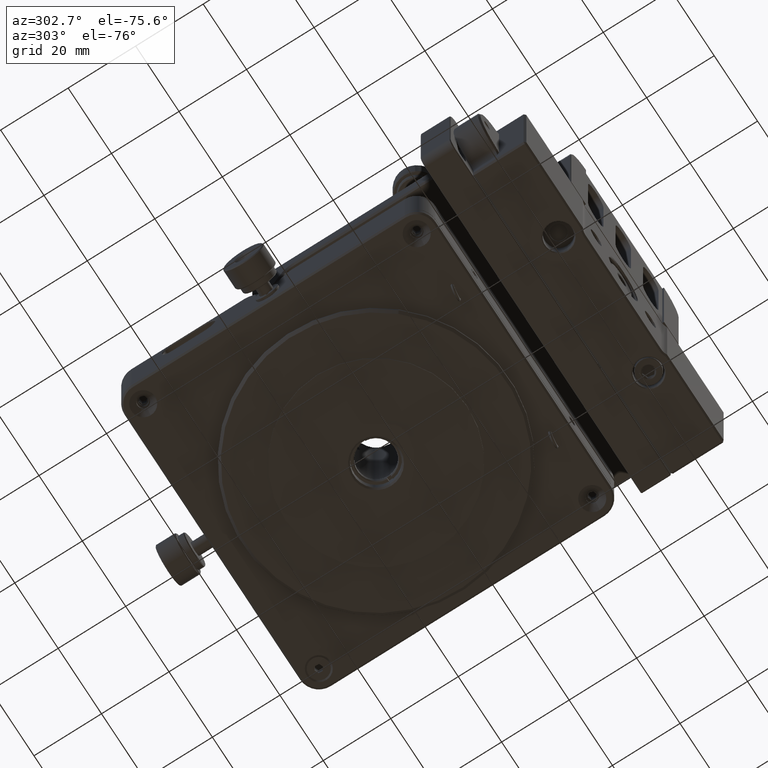
[diagram: clean part render]
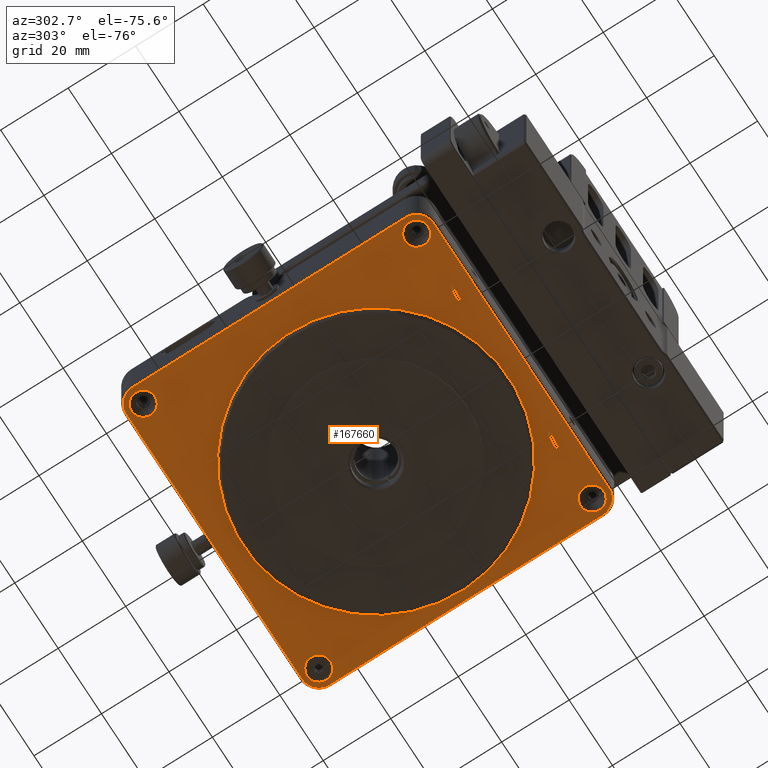
[diagram: same view with one face highlighted and labeled with its STEP entity id]
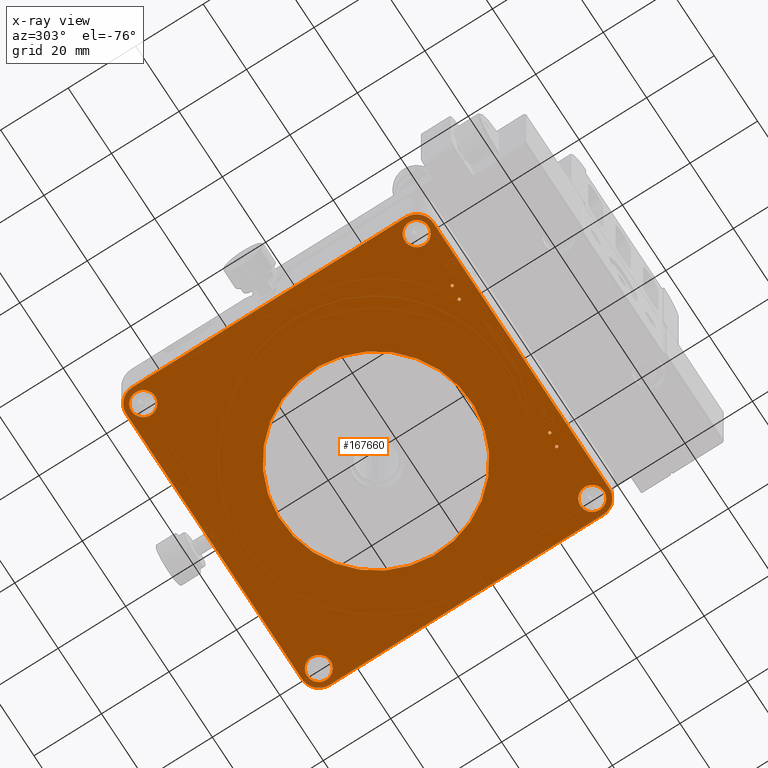
[diagram: x-ray of the same camera — body ghosted, the highlighted face saturated]
A machine part, auxiliary view. The second image highlights one B-rep face of the part: STEP entity #167660.
The next image is the same camera in x-ray: the body ghosted, the highlighted face saturated — about 0% of this face is hidden behind the body in this view.
In plain terms, the highlighted planar face has unit normal (0, 0, -1).
Its self-contained STEP definition (entity closure, byte-faithful):
#92 = ORIENTED_EDGE ( 'NONE', *, *, #39499, .T. ) ;
#320 = EDGE_CURVE ( 'NONE', #157208, #105243, #27492, .T. ) ;
#512 = EDGE_CURVE ( 'NONE', #167673, #133266, #33321, .T. ) ;
#1067 = CARTESIAN_POINT ( 'NONE',  ( -24.89744710219830282, 27.63283814579244435, -13.79999999999999005 ) ) ;
#1145 = EDGE_CURVE ( 'NONE', #93812, #73294, #126204, .T. ) ;
#3263 = CARTESIAN_POINT ( 'NONE',  ( 20.88447292318176096, 27.82886779470217675, -13.79999999999999005 ) ) ;
#3652 = DIRECTION ( 'NONE',  ( 1.000000000000000000, 0.000000000000000000, 0.000000000000000000 ) ) ;
#4131 = CARTESIAN_POINT ( 'NONE',  ( 20.27883712964198182, 27.90664543114087692, -13.79999999999999005 ) ) ;
#5915 = VECTOR ( 'NONE', #42632, 1000.000000000000000 ) ;
#6038 = DIRECTION ( 'NONE',  ( -2.262682794752357144E-16, 1.000000000000000000, 0.000000000000000000 ) ) ;
#6439 = VERTEX_POINT ( 'NONE', #10884 ) ;
#7045 = CARTESIAN_POINT ( 'NONE',  ( -24.04020187718369783, 27.62218947468412011, -13.79999999999998828 ) ) ;
#9296 = EDGE_CURVE ( 'NONE', #35709, #126966, #175110, .T. ) ;
#10884 = CARTESIAN_POINT ( 'NONE',  ( -18.08402205519100292, 49.43216392841598150, -13.79999999999999361 ) ) ;
#12639 = CARTESIAN_POINT ( 'NONE',  ( -24.88495896928329643, 27.52466543934324861, -13.79999999999998828 ) ) ;
#13404 = ORIENTED_EDGE ( 'NONE', *, *, #131718, .T. ) ;
#13531 = CARTESIAN_POINT ( 'NONE',  ( 43.99999999999996447, 27.79999999999999716, -13.79999999999998828 ) ) ;
#13650 = AXIS2_PLACEMENT_3D ( 'NONE', #94603, #104440, #148893 ) ;
#14183 = CARTESIAN_POINT ( 'NONE',  ( 45.49999999999999289, 68.30000000000001137, -13.79999999999998828 ) ) ;
#16632 = CARTESIAN_POINT ( 'NONE',  ( 20.70822327057029355, 27.95427585224049238, -13.79999999999998472 ) ) ;
#17510 = CARTESIAN_POINT ( 'NONE',  ( 20.59617593684530590, 27.98211556399626332, -13.79999999999999005 ) ) ;
#17630 = EDGE_CURVE ( 'NONE', #111304, #93812, #139726, .T. ) ;
#17898 = LINE ( 'NONE', #153183, #78309 ) ;
#18650 = CARTESIAN_POINT ( 'NONE',  ( -24.02786495579259096, 27.51532656831319557, -13.79999999999999005 ) ) ;
#20873 = EDGE_LOOP ( 'NONE', ( #152451, #146388 ) ) ;
#22745 = CARTESIAN_POINT ( 'NONE',  ( 40.49999999999995737, 27.79999999999999716, -13.79999999999998828 ) ) ;
#22824 = DIRECTION ( 'NONE',  ( -1.000000000000000000, 0.000000000000000000, 0.000000000000000000 ) ) ;
#23116 = ORIENTED_EDGE ( 'NONE', *, *, #133627, .F. ) ;
#23220 = VERTEX_POINT ( 'NONE', #115661 ) ;
#24242 = CARTESIAN_POINT ( 'NONE',  ( 24.63740835919594119, 28.41063958569165848, -13.79999999999998472 ) ) ;
#24544 = AXIS2_PLACEMENT_3D ( 'NONE', #22745, #36954, #63681 ) ;
#24828 = DIRECTION ( 'NONE',  ( -1.000000000000000000, 0.000000000000000000, 0.000000000000000000 ) ) ;
#24853 = CARTESIAN_POINT ( 'NONE',  ( 45.50000000000000000, 27.80000000000000426, -13.79999999999998828 ) ) ;
#25120 = CARTESIAN_POINT ( 'NONE',  ( -40.50000000000001421, 108.8000000000000114, -13.79999999999998828 ) ) ;
#26113 = CARTESIAN_POINT ( 'NONE',  ( -20.79174767630572873, 28.35741619543170700, -13.79999999999999005 ) ) ;
#26660 = EDGE_LOOP ( 'NONE', ( #23116, #80894 ) ) ;
#27403 = CARTESIAN_POINT ( 'NONE',  ( -40.49999999999998579, 108.8000000000000114, -13.79999999999998828 ) ) ;
#27492 = CIRCLE ( 'NONE', #50202, 3.500000000000003109 ) ;
#27769 = CARTESIAN_POINT ( 'NONE',  ( -24.04020187718369783, 27.62218947468412011, -13.79999999999998828 ) ) ;
#28002 = AXIS2_PLACEMENT_3D ( 'NONE', #139400, #44151, #125171 ) ;
#28403 = EDGE_CURVE ( 'NONE', #61238, #106487, #75960, .T. ) ;
#28634 = EDGE_LOOP ( 'NONE', ( #97052, #127620 ) ) ;
#28655 = CARTESIAN_POINT ( 'NONE',  ( -24.86131511196122190, 27.74382764132107937, -13.79999999999998828 ) ) ;
#29658 = CARTESIAN_POINT ( 'NONE',  ( 40.50000000000000000, 27.80000000000000426, -13.79999999999998828 ) ) ;
#29704 = CARTESIAN_POINT ( 'NONE',  ( 24.88495896931013363, 28.07533456065377209, -13.79999999999998828 ) ) ;
#30469 = EDGE_CURVE ( 'NONE', #42645, #152733, #72235, .T. ) ;
#30486 = CARTESIAN_POINT ( 'NONE',  ( -20.11504103068986282, 28.07533456065377209, -13.79999999999998828 ) ) ;
#30853 = CARTESIAN_POINT ( 'NONE',  ( 20.11504103071670002, 27.52466543934324861, -13.79999999999998828 ) ) ;
#31022 = VERTEX_POINT ( 'NONE', #67418 ) ;
#31145 = CARTESIAN_POINT ( 'NONE',  ( -24.81230049881804689, 27.31667212777260545, -13.79999999999999005 ) ) ;
#31302 = ORIENTED_EDGE ( 'NONE', *, *, #163586, .T. ) ;
#31933 = VECTOR ( 'NONE', #155689, 1000.000000000000000 ) ;
#32343 = CARTESIAN_POINT ( 'NONE',  ( 20.93357107436468922, 27.40421211227754839, -13.79999999999998828 ) ) ;
#33321 = CIRCLE ( 'NONE', #101545, 3.500000000000003109 ) ;
#33745 = LINE ( 'NONE', #130730, #31933 ) ;
#34645 = ORIENTED_EDGE ( 'NONE', *, *, #156206, .T. ) ;
#35459 = EDGE_CURVE ( 'NONE', #160307, #6439, #92524, .T. ) ;
#35511 = ORIENTED_EDGE ( 'NONE', *, *, #167866, .T. ) ;
#35691 = DIRECTION ( 'NONE',  ( 0.000000000000000000, -0.000000000000000000, -1.000000000000000000 ) ) ;
#35709 = VERTEX_POINT ( 'NONE', #146123 ) ;
#35869 = EDGE_CURVE ( 'NONE', #118367, #61238, #17898, .T. ) ;
#36954 = DIRECTION ( 'NONE',  ( -0.000000000000000000, -0.000000000000000000, 1.000000000000000000 ) ) ;
#37330 = VERTEX_POINT ( 'NONE', #44374 ) ;
#37694 = CARTESIAN_POINT ( 'NONE',  ( -20.95979812280276278, 27.97781052531558288, -13.79999999999998828 ) ) ;
#38324 = DIRECTION ( 'NONE',  ( -0.000000000000000000, -0.000000000000000000, 1.000000000000000000 ) ) ;
#38398 = AXIS2_PLACEMENT_3D ( 'NONE', #25120, #51818, #145308 ) ;
#39148 = ORIENTED_EDGE ( 'NONE', *, *, #92479, .T. ) ;
#39280 = CIRCLE ( 'NONE', #13650, 28.24999999999999645 ) ;
#39499 = EDGE_CURVE ( 'NONE', #73294, #118367, #146406, .T. ) ;
#40203 = CARTESIAN_POINT ( 'NONE',  ( -40.50000000000001421, 113.7999999999999972, -13.79999999999998828 ) ) ;
#40239 = CARTESIAN_POINT ( 'NONE',  ( -37.00000000000000000, 27.80000000000000426, -13.79999999999998828 ) ) ;
#40759 = FACE_BOUND ( 'NONE', #163475, .T. ) ;
#42302 = AXIS2_PLACEMENT_3D ( 'NONE', #173643, #38324, #120223 ) ;
#42519 = DIRECTION ( 'NONE',  ( 0.000000000000000000, 0.000000000000000000, -1.000000000000000000 ) ) ;
#42632 = DIRECTION ( 'NONE',  ( 2.262682794752357144E-16, -1.000000000000000000, 0.000000000000000000 ) ) ;
#42645 = VERTEX_POINT ( 'NONE', #164892 ) ;
#43446 = DIRECTION ( 'NONE',  ( -1.000000000000000000, 0.000000000000000000, 0.000000000000000000 ) ) ;
#43975 = VERTEX_POINT ( 'NONE', #98227 ) ;
#44151 = DIRECTION ( 'NONE',  ( -0.000000000000000000, -0.000000000000000000, 1.000000000000000000 ) ) ;
#44374 = CARTESIAN_POINT ( 'NONE',  ( -24.04020187718369783, 27.62218947468412011, -13.79999999999998828 ) ) ;
#44555 = CIRCLE ( 'NONE', #112790, 3.500000000000003109 ) ;
#45601 = CARTESIAN_POINT ( 'NONE',  ( -44.00000000000000711, 27.80000000000000426, -13.79999999999998828 ) ) ;
#46555 = CARTESIAN_POINT ( 'NONE',  ( 20.97213504420741259, 27.51532656831319557, -13.79999999999999005 ) ) ;
#48318 = CARTESIAN_POINT ( 'NONE',  ( 20.36286831902223327, 27.18930864080445886, -13.79999999999998472 ) ) ;
#50202 = AXIS2_PLACEMENT_3D ( 'NONE', #173474, #146744, #24828 ) ;
#50946 = CARTESIAN_POINT ( 'NONE',  ( 24.31068564032500490, 28.41067823088645383, -13.79999999999998828 ) ) ;
#51591 = ORIENTED_EDGE ( 'NONE', *, *, #104933, .T. ) ;
#51779 = DIRECTION ( 'NONE',  ( -1.000000000000000000, 0.000000000000000000, 0.000000000000000000 ) ) ;
#51818 = DIRECTION ( 'NONE',  ( 0.000000000000000000, -0.000000000000000000, -1.000000000000000000 ) ) ;
#54125 = FACE_BOUND ( 'NONE', #28634, .T. ) ;
#54604 = CARTESIAN_POINT ( 'NONE',  ( -20.47502271765608128, 28.43741010025776461, -13.79999999999999005 ) ) ;
#54621 = DIRECTION ( 'NONE',  ( 0.000000000000000000, -0.000000000000000000, -1.000000000000000000 ) ) ;
#54722 = ORIENTED_EDGE ( 'NONE', *, *, #1145, .T. ) ;
#57557 = CARTESIAN_POINT ( 'NONE',  ( 20.10255289780169718, 27.63283814579244435, -13.79999999999999005 ) ) ;
#57748 = EDGE_CURVE ( 'NONE', #123545, #111304, #33745, .T. ) ;
#59858 = CARTESIAN_POINT ( 'NONE',  ( -20.94745386183553748, 27.87088404348727977, -13.79999999999998650 ) ) ;
#59882 = CARTESIAN_POINT ( 'NONE',  ( -45.49999999999999289, 27.80000000000000426, -13.79999999999998828 ) ) ;
#59912 = CARTESIAN_POINT ( 'NONE',  ( 24.61836348446179557, 27.64118161369484739, -13.79999999999998828 ) ) ;
#59930 = CARTESIAN_POINT ( 'NONE',  ( 20.18769950118195666, 27.31667212777260545, -13.79999999999999005 ) ) ;
#60982 = CARTESIAN_POINT ( 'NONE',  ( 40.50000000000000000, 22.80000000000000071, -13.79999999999998828 ) ) ;
#61238 = VERTEX_POINT ( 'NONE', #135341 ) ;
#61336 = CARTESIAN_POINT ( 'NONE',  ( -24.88495896928329643, 27.52466543934324861, -13.79999999999998828 ) ) ;
#63033 = CARTESIAN_POINT ( 'NONE',  ( -40.49999999999998579, 108.8000000000000114, -13.79999999999998828 ) ) ;
#63418 = CARTESIAN_POINT ( 'NONE',  ( 20.11504103071670002, 27.52466543934324861, -13.79999999999998828 ) ) ;
#63681 = DIRECTION ( 'NONE',  ( -1.000000000000000000, 0.000000000000000000, 0.000000000000000000 ) ) ;
#65180 = CARTESIAN_POINT ( 'NONE',  ( 24.06652015931323518, 28.19595142426002710, -13.79999999999998828 ) ) ;
#67418 = CARTESIAN_POINT ( 'NONE',  ( -20.95979812280276278, 27.97781052531558288, -13.79999999999998828 ) ) ;
#67946 = CARTESIAN_POINT ( 'NONE',  ( -20.18723908980668114, 28.28284308626121657, -13.79999999999999005 ) ) ;
#68645 = B_SPLINE_CURVE_WITH_KNOTS ( 'NONE', 3,
 ( #86541, #59858, #84801, #71465, #97288, #125755, #139097, #99906, #111516, #85682 ),
 .UNSPECIFIED., .F., .F.,
 ( 4, 2, 2, 2, 4 ),
 ( 0.002216959276090611861, 0.002539022829340664006, 0.002861086382590716150, 0.003183149935840768295, 0.003505213489090820440 ),
 .UNSPECIFIED. ) ;
#70107 = FACE_BOUND ( 'NONE', #74502, .T. ) ;
#70129 = CARTESIAN_POINT ( 'NONE',  ( 20.95979812281630217, 27.62218947468412011, -13.79999999999998828 ) ) ;
#70881 = EDGE_LOOP ( 'NONE', ( #120957, #51591 ) ) ;
#70915 = CARTESIAN_POINT ( 'NONE',  ( 20.94746507876199715, 27.72901879504997780, -13.79999999999998650 ) ) ;
#71205 = CARTESIAN_POINT ( 'NONE',  ( -24.87246691023212009, 27.41645872454559196, -13.79999999999998650 ) ) ;
#71206 = CIRCLE ( 'NONE', #93902, 3.499999999999996003 ) ;
#71286 = ORIENTED_EDGE ( 'NONE', *, *, #30469, .T. ) ;
#71465 = CARTESIAN_POINT ( 'NONE',  ( -20.70760978610969616, 27.64534937805002102, -13.79999999999998472 ) ) ;
#72235 = B_SPLINE_CURVE_WITH_KNOTS ( 'NONE', 3,
 ( #63418, #127575, #59930, #48318, #102595, #117702, #114208, #32343, #46555, #100838 ),
 .UNSPECIFIED., .F., .F.,
 ( 4, 2, 2, 2, 4 ),
 ( 0.002374368480992179644, 0.002696737954454385584, 0.003019107427916591958, 0.003341476901378797899, 0.003663846374841003839 ),
 .UNSPECIFIED. ) ;
#72378 = CARTESIAN_POINT ( 'NONE',  ( 24.40300597980497699, 27.61777713774481668, -13.79999999999999005 ) ) ;
#73294 = VERTEX_POINT ( 'NONE', #132053 ) ;
#73745 = B_SPLINE_CURVE_WITH_KNOTS ( 'NONE', 3,
 ( #131461, #155126, #127558, #114188, #72378, #59912, #112434, #168493, #99964, #29704 ),
 .UNSPECIFIED., .F., .F.,
 ( 4, 2, 2, 2, 4 ),
 ( 0.002216959276090611861, 0.002539022829340664006, 0.002861086382590716150, 0.003183149935840768295, 0.003505213489090820440 ),
 .UNSPECIFIED. ) ;
#74063 = CARTESIAN_POINT ( 'NONE',  ( -43.99999999999999289, 108.8000000000000114, -13.79999999999998828 ) ) ;
#74502 = EDGE_LOOP ( 'NONE', ( #82881, #100555 ) ) ;
#74548 = CARTESIAN_POINT ( 'NONE',  ( -45.50000000000000711, 68.29999999999998295, -13.79999999999998828 ) ) ;
#74901 = CARTESIAN_POINT ( 'NONE',  ( 40.49999999999997868, 108.8000000000000114, -13.79999999999998828 ) ) ;
#75960 = CIRCLE ( 'NONE', #141393, 4.999999999999997335 ) ;
#75998 = EDGE_CURVE ( 'NONE', #105243, #157208, #79137, .T. ) ;
#77761 = CARTESIAN_POINT ( 'NONE',  ( -20.68931435967499155, 28.41067823088645383, -13.79999999999998828 ) ) ;
#78309 = VECTOR ( 'NONE', #3652, 1000.000000000000000 ) ;
#79137 = CIRCLE ( 'NONE', #42302, 3.500000000000003109 ) ;
#80894 = ORIENTED_EDGE ( 'NONE', *, *, #35459, .F. ) ;
#81677 = CARTESIAN_POINT ( 'NONE',  ( 45.49999999999997868, 108.8000000000000114, -13.79999999999998828 ) ) ;
#82055 = CARTESIAN_POINT ( 'NONE',  ( -24.29177672942969579, 27.95427585224049238, -13.79999999999998472 ) ) ;
#82881 = ORIENTED_EDGE ( 'NONE', *, *, #111459, .T. ) ;
#83453 = CARTESIAN_POINT ( 'NONE',  ( 43.99999999999996447, 108.8000000000000114, -13.79999999999998828 ) ) ;
#84126 = VERTEX_POINT ( 'NONE', #24853 ) ;
#84801 = CARTESIAN_POINT ( 'NONE',  ( -20.88476591325164833, 27.77127904318251694, -13.79999999999999005 ) ) ;
#85682 = CARTESIAN_POINT ( 'NONE',  ( -20.11504103068986282, 28.07533456065377209, -13.79999999999998828 ) ) ;
#86541 = CARTESIAN_POINT ( 'NONE',  ( -20.95979812280276278, 27.97781052531558288, -13.79999999999998828 ) ) ;
#91002 = CARTESIAN_POINT ( 'NONE',  ( 24.04020187719723722, 27.97781052531558288, -13.79999999999998828 ) ) ;
#92479 = EDGE_CURVE ( 'NONE', #84126, #123545, #137951, .T. ) ;
#92524 = CIRCLE ( 'NONE', #115299, 28.24999999999999645 ) ;
#92562 = AXIS2_PLACEMENT_3D ( 'NONE', #29658, #54621, #96421 ) ;
#92737 = CARTESIAN_POINT ( 'NONE',  ( 24.88495896931013363, 28.07533456065377209, -13.79999999999998828 ) ) ;
#92827 = CARTESIAN_POINT ( 'NONE',  ( 36.99999999999995737, 108.8000000000000114, -13.79999999999998828 ) ) ;
#92843 = EDGE_LOOP ( 'NONE', ( #34645, #31302 ) ) ;
#93199 = ORIENTED_EDGE ( 'NONE', *, *, #9296, .T. ) ;
#93264 = FACE_BOUND ( 'NONE', #26660, .T. ) ;
#93812 = VERTEX_POINT ( 'NONE', #59882 ) ;
#93902 = AXIS2_PLACEMENT_3D ( 'NONE', #144745, #159843, #22824 ) ;
#94603 = CARTESIAN_POINT ( 'NONE',  ( 3.261633096731141102, 67.93690672952564569, -13.79999999999999361 ) ) ;
#95032 = FACE_BOUND ( 'NONE', #123139, .T. ) ;
#95921 = FACE_BOUND ( 'NONE', #92843, .T. ) ;
#96255 = CARTESIAN_POINT ( 'NONE',  ( -24.88495896928329643, 27.52466543934324861, -13.79999999999998828 ) ) ;
#96421 = DIRECTION ( 'NONE',  ( 1.000000000000000000, 0.000000000000000000, 0.000000000000000000 ) ) ;
#97052 = ORIENTED_EDGE ( 'NONE', *, *, #320, .T. ) ;
#97288 = CARTESIAN_POINT ( 'NONE',  ( -20.59699402019502301, 27.61777713774481668, -13.79999999999999005 ) ) ;
#98227 = CARTESIAN_POINT ( 'NONE',  ( 24.88495896931013363, 28.07533456065377209, -13.79999999999998828 ) ) ;
#99668 = CARTESIAN_POINT ( 'NONE',  ( 24.60728824865328335, 86.44164953063528856, -13.79999999999999361 ) ) ;
#99906 = CARTESIAN_POINT ( 'NONE',  ( -20.13774447032141168, 27.85733730260842123, -13.79999999999998828 ) ) ;
#99964 = CARTESIAN_POINT ( 'NONE',  ( 24.89729409423503625, 27.96848721528501613, -13.79999999999999005 ) ) ;
#100515 = CARTESIAN_POINT ( 'NONE',  ( -24.63713168097775608, 27.18930864080445886, -13.79999999999998472 ) ) ;
#100555 = ORIENTED_EDGE ( 'NONE', *, *, #512, .T. ) ;
#100838 = CARTESIAN_POINT ( 'NONE',  ( 20.95979812281630217, 27.62218947468412011, -13.79999999999998828 ) ) ;
#101545 = AXIS2_PLACEMENT_3D ( 'NONE', #148510, #136039, #43446 ) ;
#101719 = EDGE_CURVE ( 'NONE', #23220, #134288, #169082, .T. ) ;
#101791 = CIRCLE ( 'NONE', #28002, 3.500000000000003109 ) ;
#102595 = CARTESIAN_POINT ( 'NONE',  ( 20.47523701869589630, 27.16254778262087655, -13.79999999999999005 ) ) ;
#104440 = DIRECTION ( 'NONE',  ( 0.000000000000000000, 0.000000000000000000, -1.000000000000000000 ) ) ;
#104455 = B_SPLINE_CURVE_WITH_KNOTS ( 'NONE', 3,
 ( #61336, #71205, #31145, #100515, #114742, #154815, #167304, #153078, #18650, #7045 ),
 .UNSPECIFIED., .F., .F.,
 ( 4, 2, 2, 2, 4 ),
 ( 0.002374368480992179644, 0.002696737954454385584, 0.003019107427916591958, 0.003341476901378797899, 0.003663846374841003839 ),
 .UNSPECIFIED. ) ;
#104933 = EDGE_CURVE ( 'NONE', #43975, #121204, #128028, .T. ) ;
#105243 = VERTEX_POINT ( 'NONE', #40239 ) ;
#105335 = CARTESIAN_POINT ( 'NONE',  ( -20.11504103068986282, 28.07533456065377209, -13.79999999999998828 ) ) ;
#106487 = VERTEX_POINT ( 'NONE', #81677 ) ;
#106610 = DIRECTION ( 'NONE',  ( -1.000000000000000000, 0.000000000000000000, -0.000000000000000000 ) ) ;
#106981 = CARTESIAN_POINT ( 'NONE',  ( 24.81276091019331886, 28.28284308626121657, -13.79999999999999005 ) ) ;
#110157 = FACE_OUTER_BOUND ( 'NONE', #148820, .T. ) ;
#111304 = VERTEX_POINT ( 'NONE', #126042 ) ;
#111459 = EDGE_CURVE ( 'NONE', #133266, #167673, #101791, .T. ) ;
#111516 = CARTESIAN_POINT ( 'NONE',  ( -20.10270590576496730, 27.96848721528501613, -13.79999999999999005 ) ) ;
#112434 = CARTESIAN_POINT ( 'NONE',  ( 24.72045378482809852, 27.69245848642102814, -13.79999999999999005 ) ) ;
#112790 = AXIS2_PLACEMENT_3D ( 'NONE', #170580, #131373, #169700 ) ;
#114188 = CARTESIAN_POINT ( 'NONE',  ( 24.29239021389029318, 27.64534937805002102, -13.79999999999998472 ) ) ;
#114208 = CARTESIAN_POINT ( 'NONE',  ( 20.79186138978329268, 27.24265383499215432, -13.79999999999999005 ) ) ;
#114463 = CARTESIAN_POINT ( 'NONE',  ( 20.13868488803877455, 27.74382764132107937, -13.79999999999998828 ) ) ;
#114742 = CARTESIAN_POINT ( 'NONE',  ( -24.52476298130410726, 27.16254778262087655, -13.79999999999999005 ) ) ;
#115299 = AXIS2_PLACEMENT_3D ( 'NONE', #136307, #173723, #51779 ) ;
#115453 = EDGE_CURVE ( 'NONE', #134288, #23220, #71206, .T. ) ;
#115661 = CARTESIAN_POINT ( 'NONE',  ( -36.99999999999998579, 108.8000000000000114, -13.79999999999998828 ) ) ;
#115749 = ORIENTED_EDGE ( 'NONE', *, *, #116637, .T. ) ;
#115789 = VECTOR ( 'NONE', #6038, 1000.000000000000000 ) ;
#116637 = EDGE_CURVE ( 'NONE', #106487, #84126, #136091, .T. ) ;
#117702 = CARTESIAN_POINT ( 'NONE',  ( 20.68966530206015975, 27.18943457940636677, -13.79999999999998828 ) ) ;
#118367 = VERTEX_POINT ( 'NONE', #40203 ) ;
#118496 = VERTEX_POINT ( 'NONE', #96255 ) ;
#119035 = B_SPLINE_CURVE_WITH_KNOTS ( 'NONE', 3,
 ( #105335, #148040, #67946, #122243, #54604, #77761, #26113, #132044, #147156, #37694 ),
 .UNSPECIFIED., .F., .F.,
 ( 4, 2, 2, 2, 4 ),
 ( 0.0009280329053021958057, 0.001250264497999299847, 0.001572496090696403996, 0.001894727683393507929, 0.002216959276090611861 ),
 .UNSPECIFIED. ) ;
#120223 = DIRECTION ( 'NONE',  ( -1.000000000000000000, 0.000000000000000000, 0.000000000000000000 ) ) ;
#120340 = CARTESIAN_POINT ( 'NONE',  ( -24.61739322587687795, 27.95894220946071229, -13.79999999999998828 ) ) ;
#120957 = ORIENTED_EDGE ( 'NONE', *, *, #148003, .T. ) ;
#121204 = VERTEX_POINT ( 'NONE', #166768 ) ;
#122243 = CARTESIAN_POINT ( 'NONE',  ( -20.36259164080404460, 28.41063958569165848, -13.79999999999998472 ) ) ;
#122649 = FACE_BOUND ( 'NONE', #124391, .T. ) ;
#122996 = CARTESIAN_POINT ( 'NONE',  ( -24.40382406315469055, 27.98211556399626332, -13.79999999999999005 ) ) ;
#123139 = EDGE_LOOP ( 'NONE', ( #151273, #71286 ) ) ;
#123545 = VERTEX_POINT ( 'NONE', #60982 ) ;
#124391 = EDGE_LOOP ( 'NONE', ( #93199, #35511 ) ) ;
#125171 = DIRECTION ( 'NONE',  ( -1.000000000000000000, 0.000000000000000000, 0.000000000000000000 ) ) ;
#125204 = CARTESIAN_POINT ( 'NONE',  ( 20.95979812281630217, 27.62218947468412011, -13.79999999999998828 ) ) ;
#125755 = CARTESIAN_POINT ( 'NONE',  ( -20.38163651553820443, 27.64118161369484739, -13.79999999999998828 ) ) ;
#126042 = CARTESIAN_POINT ( 'NONE',  ( -40.49999999999999289, 22.80000000000000071, -13.79999999999998828 ) ) ;
#126204 = LINE ( 'NONE', #74548, #115789 ) ;
#126966 = VERTEX_POINT ( 'NONE', #13531 ) ;
#127033 = AXIS2_PLACEMENT_3D ( 'NONE', #27403, #42519, #106610 ) ;
#127558 = CARTESIAN_POINT ( 'NONE',  ( 24.11523408674835522, 27.77127904318251694, -13.79999999999999005 ) ) ;
#127575 = CARTESIAN_POINT ( 'NONE',  ( 20.12753308976787636, 27.41645872454559196, -13.79999999999998650 ) ) ;
#127620 = ORIENTED_EDGE ( 'NONE', *, *, #75998, .T. ) ;
#128028 = B_SPLINE_CURVE_WITH_KNOTS ( 'NONE', 3,
 ( #92737, #172873, #106981, #24242, #158663, #50946, #159540, #65180, #147926, #91002 ),
 .UNSPECIFIED., .F., .F.,
 ( 4, 2, 2, 2, 4 ),
 ( 0.0009280329053021958057, 0.001250264497999299847, 0.001572496090696403996, 0.001894727683393507929, 0.002216959276090611861 ),
 .UNSPECIFIED. ) ;
#130641 = B_SPLINE_CURVE_WITH_KNOTS ( 'NONE', 3,
 ( #27769, #151459, #147918, #82055, #122996, #120340, #148803, #28655, #1067, #12639 ),
 .UNSPECIFIED., .F., .F.,
 ( 4, 2, 2, 2, 4 ),
 ( 0.001085295857866408562, 0.001407564013647851333, 0.001729832169429294103, 0.002052100325210737090, 0.002374368480992179644 ),
 .UNSPECIFIED. ) ;
#130730 = CARTESIAN_POINT ( 'NONE',  ( -5.746271514173173500E-15, 22.80000000000000071, -13.79999999999998828 ) ) ;
#131358 = DIRECTION ( 'NONE',  ( 1.000000000000000000, 0.000000000000000000, 0.000000000000000000 ) ) ;
#131373 = DIRECTION ( 'NONE',  ( -0.000000000000000000, -0.000000000000000000, 1.000000000000000000 ) ) ;
#131461 = CARTESIAN_POINT ( 'NONE',  ( 24.04020187719723722, 27.97781052531558288, -13.79999999999998828 ) ) ;
#131531 = DIRECTION ( 'NONE',  ( -1.000000000000000000, 0.000000000000000000, 0.000000000000000000 ) ) ;
#131718 = EDGE_CURVE ( 'NONE', #118496, #37330, #104455, .T. ) ;
#132044 = CARTESIAN_POINT ( 'NONE',  ( -20.93347984068676482, 28.19595142426002710, -13.79999999999998828 ) ) ;
#132053 = CARTESIAN_POINT ( 'NONE',  ( -45.50000000000001421, 108.8000000000000114, -13.79999999999998828 ) ) ;
#133266 = VERTEX_POINT ( 'NONE', #92827 ) ;
#133627 = EDGE_CURVE ( 'NONE', #6439, #160307, #39280, .T. ) ;
#134288 = VERTEX_POINT ( 'NONE', #74063 ) ;
#135341 = CARTESIAN_POINT ( 'NONE',  ( 40.49999999999997868, 113.7999999999999972, -13.79999999999998828 ) ) ;
#136039 = DIRECTION ( 'NONE',  ( -0.000000000000000000, -0.000000000000000000, 1.000000000000000000 ) ) ;
#136091 = LINE ( 'NONE', #14183, #5915 ) ;
#136307 = CARTESIAN_POINT ( 'NONE',  ( 3.261633096731141102, 67.93690672952564569, -13.79999999999999361 ) ) ;
#137951 = CIRCLE ( 'NONE', #92562, 5.000000000000004441 ) ;
#138549 = CARTESIAN_POINT ( 'NONE',  ( 20.38260677412311495, 27.95894220946071229, -13.79999999999998828 ) ) ;
#139097 = CARTESIAN_POINT ( 'NONE',  ( -20.27954621517190503, 27.69245848642102814, -13.79999999999999005 ) ) ;
#139400 = CARTESIAN_POINT ( 'NONE',  ( 40.49999999999995737, 108.8000000000000114, -13.79999999999998828 ) ) ;
#139726 = CIRCLE ( 'NONE', #151043, 4.999999999999997335 ) ;
#139973 = VERTEX_POINT ( 'NONE', #30486 ) ;
#140598 = ORIENTED_EDGE ( 'NONE', *, *, #17630, .T. ) ;
#141230 = ORIENTED_EDGE ( 'NONE', *, *, #57748, .T. ) ;
#141393 = AXIS2_PLACEMENT_3D ( 'NONE', #74901, #35691, #159389 ) ;
#143149 = DIRECTION ( 'NONE',  ( -0.000000000000000000, -0.000000000000000000, 1.000000000000000000 ) ) ;
#143449 = ORIENTED_EDGE ( 'NONE', *, *, #28403, .T. ) ;
#144710 = DIRECTION ( 'NONE',  ( 0.000000000000000000, -0.000000000000000000, -1.000000000000000000 ) ) ;
#144745 = CARTESIAN_POINT ( 'NONE',  ( -40.49999999999998579, 108.8000000000000114, -13.79999999999998828 ) ) ;
#145308 = DIRECTION ( 'NONE',  ( 1.000000000000000000, 0.000000000000000000, 0.000000000000000000 ) ) ;
#146123 = CARTESIAN_POINT ( 'NONE',  ( 36.99999999999995737, 27.79999999999999716, -13.79999999999998828 ) ) ;
#146388 = ORIENTED_EDGE ( 'NONE', *, *, #101719, .T. ) ;
#146406 = CIRCLE ( 'NONE', #38398, 4.999999999999997335 ) ;
#146744 = DIRECTION ( 'NONE',  ( -0.000000000000000000, -0.000000000000000000, 1.000000000000000000 ) ) ;
#147156 = CARTESIAN_POINT ( 'NONE',  ( -20.97214882448089668, 28.08479279696224751, -13.79999999999999005 ) ) ;
#147918 = CARTESIAN_POINT ( 'NONE',  ( -24.11552707681822838, 27.82886779470217675, -13.79999999999999005 ) ) ;
#147926 = CARTESIAN_POINT ( 'NONE',  ( 24.02785117551910687, 28.08479279696224751, -13.79999999999999005 ) ) ;
#148003 = EDGE_CURVE ( 'NONE', #121204, #43975, #73745, .T. ) ;
#148040 = CARTESIAN_POINT ( 'NONE',  ( -20.12738259162486543, 28.18223765454223084, -13.79999999999998650 ) ) ;
#148510 = CARTESIAN_POINT ( 'NONE',  ( 40.49999999999995737, 108.8000000000000114, -13.79999999999998828 ) ) ;
#148803 = CARTESIAN_POINT ( 'NONE',  ( -24.72116287035801818, 27.90664543114087692, -13.79999999999999005 ) ) ;
#148820 = EDGE_LOOP ( 'NONE', ( #115749, #39148, #141230, #140598, #54722, #92, #159177, #143449 ) ) ;
#148893 = DIRECTION ( 'NONE',  ( -1.000000000000000000, 0.000000000000000000, 0.000000000000000000 ) ) ;
#149320 = PLANE ( 'NONE',  #127033 ) ;
#151043 = AXIS2_PLACEMENT_3D ( 'NONE', #172284, #144710, #131358 ) ;
#151273 = ORIENTED_EDGE ( 'NONE', *, *, #162475, .T. ) ;
#151459 = CARTESIAN_POINT ( 'NONE',  ( -24.05253492123799575, 27.72901879504997780, -13.79999999999998650 ) ) ;
#152451 = ORIENTED_EDGE ( 'NONE', *, *, #115453, .T. ) ;
#152733 = VERTEX_POINT ( 'NONE', #70129 ) ;
#153078 = CARTESIAN_POINT ( 'NONE',  ( -24.06642892563530722, 27.40421211227754839, -13.79999999999998828 ) ) ;
#153183 = CARTESIAN_POINT ( 'NONE',  ( -5.746271514173173500E-15, 113.7999999999999972, -13.79999999999998828 ) ) ;
#154815 = CARTESIAN_POINT ( 'NONE',  ( -24.31033469793983670, 27.18943457940636677, -13.79999999999998828 ) ) ;
#155126 = CARTESIAN_POINT ( 'NONE',  ( 24.05254613816445897, 27.87088404348727977, -13.79999999999998650 ) ) ;
#155689 = DIRECTION ( 'NONE',  ( -1.000000000000000000, 0.000000000000000000, 0.000000000000000000 ) ) ;
#156206 = EDGE_CURVE ( 'NONE', #31022, #139973, #68645, .T. ) ;
#157208 = VERTEX_POINT ( 'NONE', #45601 ) ;
#158663 = CARTESIAN_POINT ( 'NONE',  ( 24.52497728234391872, 28.43741010025776461, -13.79999999999999005 ) ) ;
#159177 = ORIENTED_EDGE ( 'NONE', *, *, #35869, .T. ) ;
#159389 = DIRECTION ( 'NONE',  ( 1.000000000000000000, 0.000000000000000000, 0.000000000000000000 ) ) ;
#159540 = CARTESIAN_POINT ( 'NONE',  ( 24.20825232369427127, 28.35741619543170700, -13.79999999999999005 ) ) ;
#159843 = DIRECTION ( 'NONE',  ( -0.000000000000000000, -0.000000000000000000, 1.000000000000000000 ) ) ;
#160307 = VERTEX_POINT ( 'NONE', #99668 ) ;
#161590 = B_SPLINE_CURVE_WITH_KNOTS ( 'NONE', 3,
 ( #125204, #70915, #3263, #16632, #17510, #138549, #4131, #114463, #57557, #30853 ),
 .UNSPECIFIED., .F., .F.,
 ( 4, 2, 2, 2, 4 ),
 ( 0.001085295857866408562, 0.001407564013647851333, 0.001729832169429294103, 0.002052100325210737090, 0.002374368480992179644 ),
 .UNSPECIFIED. ) ;
#162475 = EDGE_CURVE ( 'NONE', #152733, #42645, #161590, .T. ) ;
#162718 = FACE_BOUND ( 'NONE', #20873, .T. ) ;
#163475 = EDGE_LOOP ( 'NONE', ( #174733, #13404 ) ) ;
#163518 = AXIS2_PLACEMENT_3D ( 'NONE', #63033, #143149, #131531 ) ;
#163586 = EDGE_CURVE ( 'NONE', #139973, #31022, #119035, .T. ) ;
#164892 = CARTESIAN_POINT ( 'NONE',  ( 20.11504103071670002, 27.52466543934324861, -13.79999999999998828 ) ) ;
#166768 = CARTESIAN_POINT ( 'NONE',  ( 24.04020187719723722, 27.97781052531558288, -13.79999999999998828 ) ) ;
#167304 = CARTESIAN_POINT ( 'NONE',  ( -24.20813861021670377, 27.24265383499215432, -13.79999999999999005 ) ) ;
#167660 = ADVANCED_FACE ( 'NONE', ( #176057, #95921, #93264, #122649, #54125, #162718, #70107, #110157, #40759, #95032 ), #149320, .T. ) ;
#167673 = VERTEX_POINT ( 'NONE', #83453 ) ;
#167866 = EDGE_CURVE ( 'NONE', #126966, #35709, #44555, .T. ) ;
#168493 = CARTESIAN_POINT ( 'NONE',  ( 24.86225552967858832, 27.85733730260842123, -13.79999999999998828 ) ) ;
#169082 = CIRCLE ( 'NONE', #163518, 3.499999999999996003 ) ;
#169700 = DIRECTION ( 'NONE',  ( -1.000000000000000000, 0.000000000000000000, 0.000000000000000000 ) ) ;
#170580 = CARTESIAN_POINT ( 'NONE',  ( 40.49999999999995737, 27.79999999999999716, -13.79999999999998828 ) ) ;
#172284 = CARTESIAN_POINT ( 'NONE',  ( -40.49999999999999289, 27.79999999999999716, -13.79999999999998828 ) ) ;
#172873 = CARTESIAN_POINT ( 'NONE',  ( 24.87261740837513457, 28.18223765454223084, -13.79999999999998650 ) ) ;
#173474 = CARTESIAN_POINT ( 'NONE',  ( -40.50000000000000000, 27.80000000000000426, -13.79999999999998828 ) ) ;
#173643 = CARTESIAN_POINT ( 'NONE',  ( -40.50000000000000000, 27.80000000000000426, -13.79999999999998828 ) ) ;
#173723 = DIRECTION ( 'NONE',  ( 0.000000000000000000, 0.000000000000000000, -1.000000000000000000 ) ) ;
#174733 = ORIENTED_EDGE ( 'NONE', *, *, #175512, .T. ) ;
#175110 = CIRCLE ( 'NONE', #24544, 3.500000000000003109 ) ;
#175512 = EDGE_CURVE ( 'NONE', #37330, #118496, #130641, .T. ) ;
#176057 = FACE_BOUND ( 'NONE', #70881, .T. ) ;